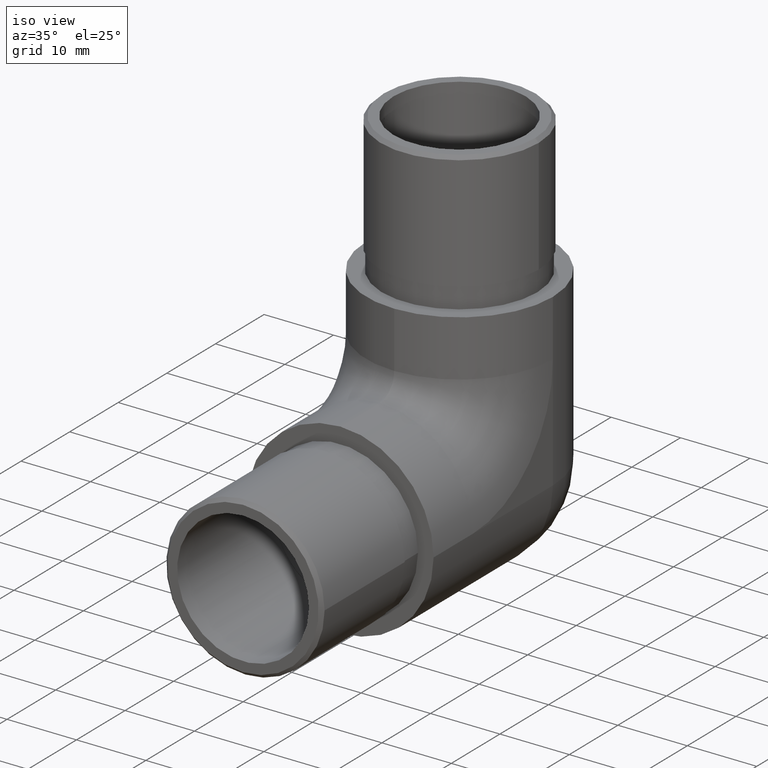
[diagram: clean part render]
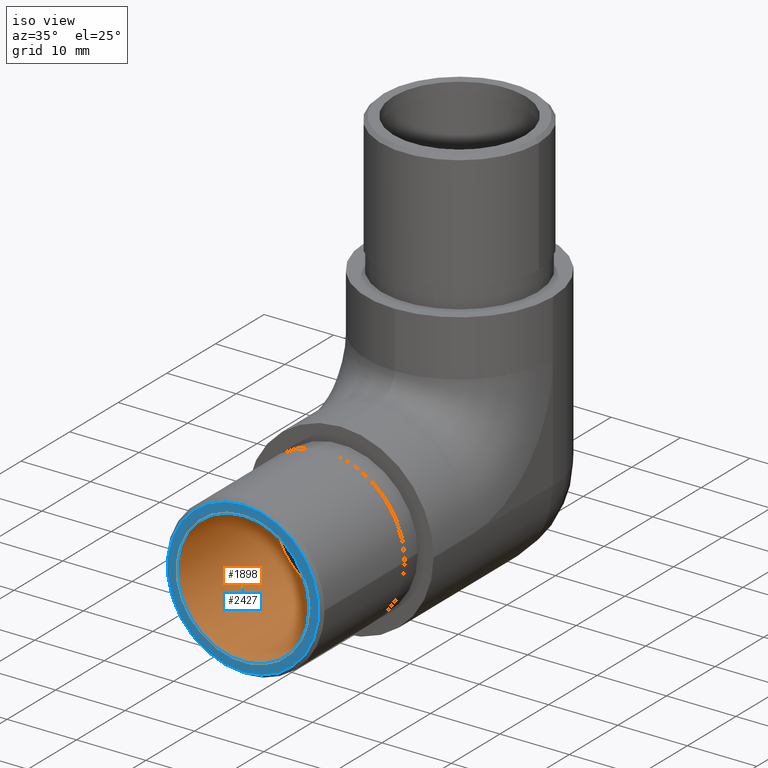
[diagram: same view with the hole feature highlighted: cylindrical wall and planar end face, labeled with their STEP entity ids]
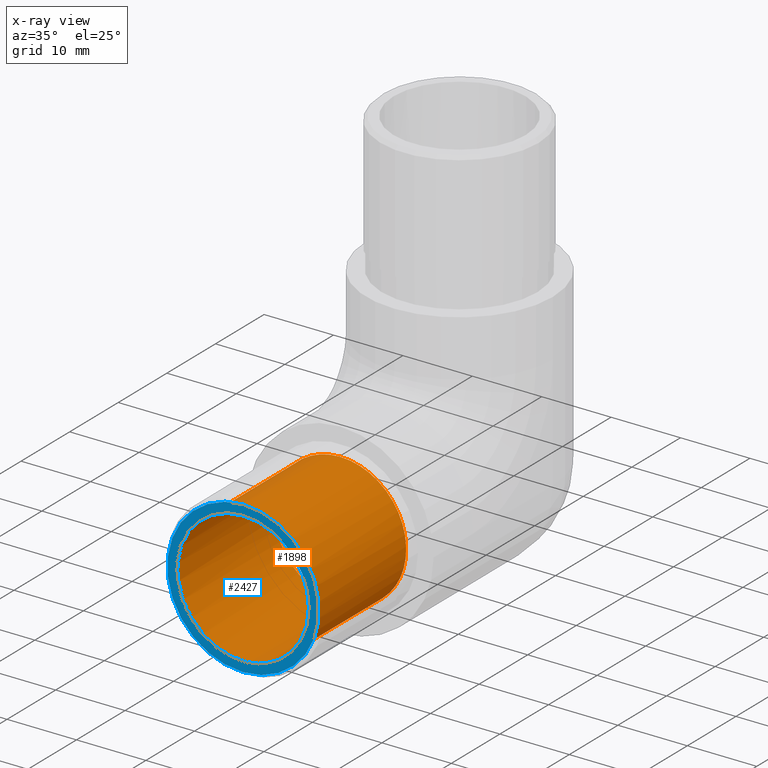
[diagram: x-ray of the same camera — body ghosted, the hole faces saturated]
A machine part, iso view. The highlighted faces form one hole feature of diameter 19 mm: the cylindrical wall (entity #1898, orange) and its adjacent planar end face (entity #2427, blue) — they share a circular edge in the B-rep.
The next image is the same camera in x-ray (body ghosted, the hole faces saturated) — the bore reads through the body.
Wall:
#79 = ORIENTED_EDGE ( 'NONE', *, *, #12189, .T. ) ;
#536 = DIRECTION ( 'NONE',  ( 0.0000000000000000000, 0.0000000000000000000, 1.000000000000000000 ) ) ;
#912 = VERTEX_POINT ( 'NONE', #6999 ) ;
#1334 = DIRECTION ( 'NONE',  ( 1.000000000000000000, 0.0000000000000000000, 0.0000000000000000000 ) ) ;
#1495 = DIRECTION ( 'NONE',  ( 0.0000000000000000000, -4.565061778886334000E-016, 1.000000000000000000 ) ) ;
#1898 = ADVANCED_FACE ( 'NONE', ( #7881, #5866 ), #5706, .F. ) ;
#2503 = DIRECTION ( 'NONE',  ( -0.0000000000000000000, 1.000000000000000000, 4.440892098500625200E-016 ) ) ;
#2506 = DIRECTION ( 'NONE',  ( 0.0000000000000000000, 1.000000000000000000, 0.0000000000000000000 ) ) ;
#5706 = CYLINDRICAL_SURFACE ( 'NONE', #7362, 9.500000000000000000 ) ;
#5782 = CIRCLE ( 'NONE', #7018, 9.500000000000000000 ) ;
#5866 = FACE_OUTER_BOUND ( 'NONE', #13652, .T. ) ;
#6495 = EDGE_CURVE ( 'NONE', #912, #912, #5782, .T. ) ;
#6801 = ORIENTED_EDGE ( 'NONE', *, *, #6495, .F. ) ;
#6999 = CARTESIAN_POINT ( 'NONE',  ( 9.500000000000003600, -19.99999999999999300, -1.101896351940467700E-014 ) ) ;
#7018 = AXIS2_PLACEMENT_3D ( 'NONE', #9907, #2503, #1334 ) ;
#7097 = EDGE_LOOP ( 'NONE', ( #79 ) ) ;
#7362 = AXIS2_PLACEMENT_3D ( 'NONE', #8012, #9063, #1495 ) ;
#7881 = FACE_OUTER_BOUND ( 'NONE', #7097, .T. ) ;
#8012 = CARTESIAN_POINT ( 'NONE',  ( 2.618207179355330000E-015, -2.999999999999993300, -1.332267629550187500E-015 ) ) ;
#8079 = VERTEX_POINT ( 'NONE', #12628 ) ;
#9050 = CARTESIAN_POINT ( 'NONE',  ( 2.618207179355330000E-015, 0.0000000000000000000, -3.081487911019577400E-030 ) ) ;
#9063 = DIRECTION ( 'NONE',  ( -0.0000000000000000000, 1.000000000000000000, 4.440892098500624700E-016 ) ) ;
#9907 = CARTESIAN_POINT ( 'NONE',  ( 2.618207179355330000E-015, -19.99999999999999300, -1.101896351940467700E-014 ) ) ;
#9920 = AXIS2_PLACEMENT_3D ( 'NONE', #9050, #2506, #536 ) ;
#12189 = EDGE_CURVE ( 'NONE', #8079, #8079, #12600, .T. ) ;
#12600 = CIRCLE ( 'NONE', #9920, 9.500000000000000000 ) ;
#12628 = CARTESIAN_POINT ( 'NONE',  ( 2.618207179355330000E-015, 0.0000000000000000000, 9.500000000000000000 ) ) ;
#13652 = EDGE_LOOP ( 'NONE', ( #6801 ) ) ;
End face:
#798 = ORIENTED_EDGE ( 'NONE', *, *, #6495, .T. ) ;
#912 = VERTEX_POINT ( 'NONE', #6999 ) ;
#1044 = AXIS2_PLACEMENT_3D ( 'NONE', #13370, #12337, #6930 ) ;
#1334 = DIRECTION ( 'NONE',  ( 1.000000000000000000, 0.0000000000000000000, 0.0000000000000000000 ) ) ;
#2427 = ADVANCED_FACE ( 'NONE', ( #3699, #10384 ), #9237, .T. ) ;
#2503 = DIRECTION ( 'NONE',  ( -0.0000000000000000000, 1.000000000000000000, 4.440892098500625200E-016 ) ) ;
#2774 = DIRECTION ( 'NONE',  ( 0.0000000000000000000, -1.000000000000000000, -4.440892098500625200E-016 ) ) ;
#3699 = FACE_OUTER_BOUND ( 'NONE', #12692, .T. ) ;
#5782 = CIRCLE ( 'NONE', #7018, 9.500000000000000000 ) ;
#6495 = EDGE_CURVE ( 'NONE', #912, #912, #5782, .T. ) ;
#6930 = DIRECTION ( 'NONE',  ( 0.0000000000000000000, 3.182978855003321200E-016, -1.000000000000000000 ) ) ;
#6999 = CARTESIAN_POINT ( 'NONE',  ( 9.500000000000003600, -19.99999999999999300, -1.101896351940467700E-014 ) ) ;
#7018 = AXIS2_PLACEMENT_3D ( 'NONE', #9907, #2503, #1334 ) ;
#7489 = EDGE_LOOP ( 'NONE', ( #798 ) ) ;
#9237 = PLANE ( 'NONE',  #12824 ) ;
#9258 = CARTESIAN_POINT ( 'NONE',  ( 2.618207179355330000E-015, -19.99999999999998900, -10.89999999999999100 ) ) ;
#9631 = EDGE_CURVE ( 'NONE', #13585, #13585, #10462, .T. ) ;
#9907 = CARTESIAN_POINT ( 'NONE',  ( 2.618207179355330000E-015, -19.99999999999999300, -1.101896351940467700E-014 ) ) ;
#10384 = FACE_BOUND ( 'NONE', #7489, .T. ) ;
#10462 = CIRCLE ( 'NONE', #1044, 10.89999999999998100 ) ;
#11443 = DIRECTION ( 'NONE',  ( 1.000000000000000000, 0.0000000000000000000, 0.0000000000000000000 ) ) ;
#12337 = DIRECTION ( 'NONE',  ( 0.0000000000000000000, -1.000000000000000000, -4.440892098500625200E-016 ) ) ;
#12692 = EDGE_LOOP ( 'NONE', ( #13010 ) ) ;
#12824 = AXIS2_PLACEMENT_3D ( 'NONE', #13541, #2774, #11443 ) ;
#13010 = ORIENTED_EDGE ( 'NONE', *, *, #9631, .T. ) ;
#13370 = CARTESIAN_POINT ( 'NONE',  ( 2.618207179355330000E-015, -19.99999999999999300, -1.101896351940467700E-014 ) ) ;
#13541 = CARTESIAN_POINT ( 'NONE',  ( 2.618207179355330000E-015, -19.99999999999999300, -1.101896351940467700E-014 ) ) ;
#13585 = VERTEX_POINT ( 'NONE', #9258 ) ;